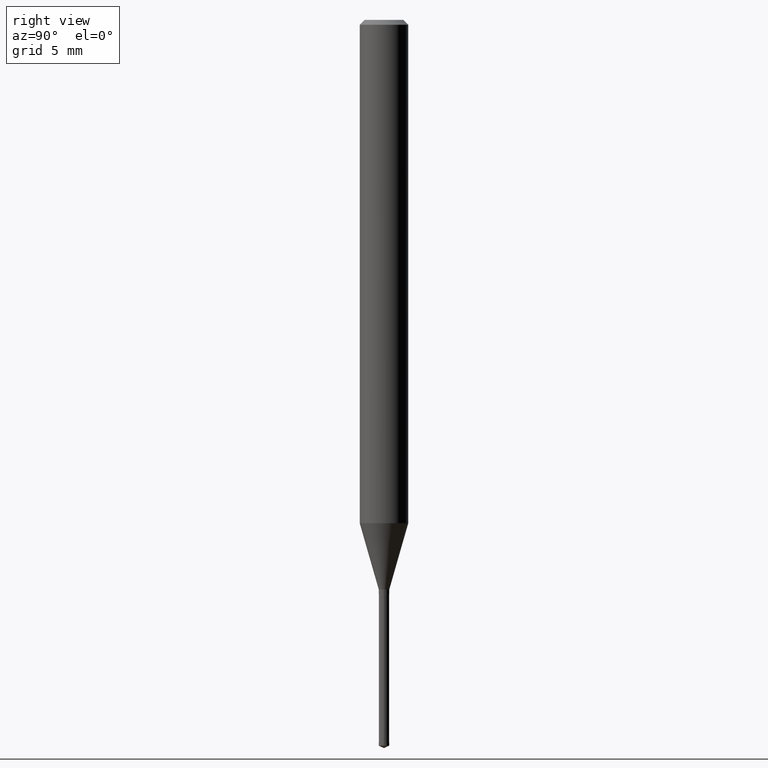
[diagram: clean part render]
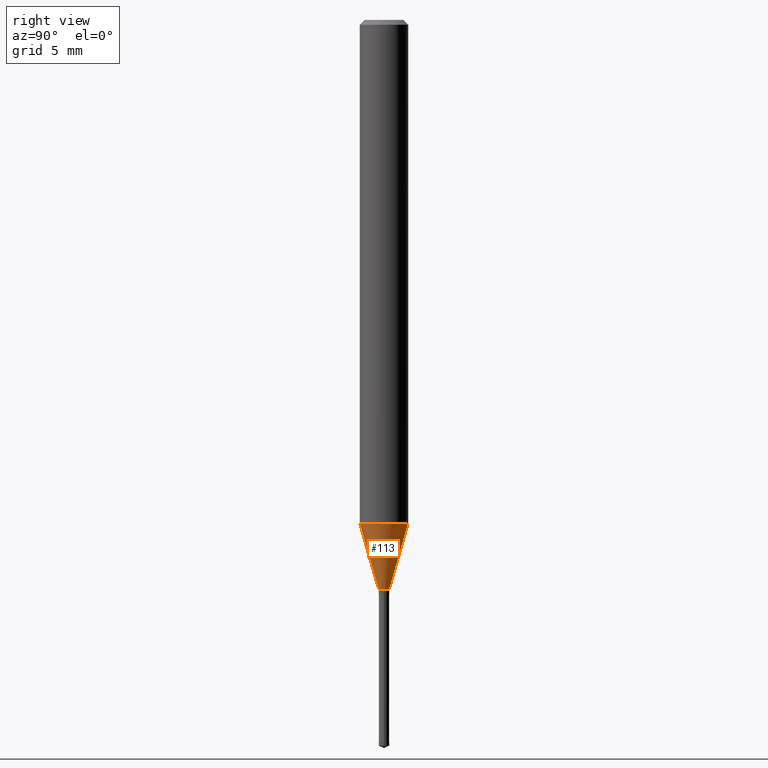
[diagram: same view with one face highlighted and labeled with its STEP entity id]
A machine part, right view. The second image highlights one B-rep face of the part: STEP entity #113.
In plain terms, the highlighted conical surface has half-angle 16.002 deg.
Its self-contained STEP definition (entity closure, byte-faithful):
#101=VERTEX_POINT('',#237);
#109=EDGE_CURVE('',#115,#183,#245,.T.);
#113=ADVANCED_FACE('',(#249),#250,.T.);
#115=VERTEX_POINT('',#252);
#147=EDGE_CURVE('',#201,#183,#286,.T.);
#153=EDGE_CURVE('',#101,#115,#293,.T.);
#161=EDGE_CURVE('',#201,#101,#302,.T.);
#183=VERTEX_POINT('',#329);
#201=VERTEX_POINT('',#351);
#237=CARTESIAN_POINT('',(0.0,0.325,-35.1991339745962));
#245=LINE('',#397,#398);
#249=FACE_OUTER_BOUND('',#402,.T.);
#250=CONICAL_SURFACE('',#403,0.9125,0.279290058693806);
#252=CARTESIAN_POINT('',(3.97997064992272E-017,-0.325,-35.1991339745962));
#286=CIRCLE('',#449,1.5);
#293=CIRCLE('',#457,0.325);
#302=LINE('',#468,#469);
#329=CARTESIAN_POINT('',(1.83690953073357E-016,-1.5,-31.102));
#351=CARTESIAN_POINT('',(0.0,1.5,-31.102));
#397=CARTESIAN_POINT('',(1.11745329786292E-016,-0.9125,-33.1505669872981));
#398=VECTOR('',#555,1.0);
#402=EDGE_LOOP('',(#557,#558,#559,#560));
#403=AXIS2_PLACEMENT_3D('',#561,#562,#563);
#449=AXIS2_PLACEMENT_3D('',#595,#596,#597);
#457=AXIS2_PLACEMENT_3D('',#606,#607,#608);
#468=CARTESIAN_POINT('',(-1.11745329786292E-016,0.9125,-33.1505669872981));
#469=VECTOR('',#619,1.0);
#555=DIRECTION('',(3.3759125764446E-017,-0.275673286024307,0.961251392390441));
#557=ORIENTED_EDGE('',*,*,#161,.F.);
#558=ORIENTED_EDGE('',*,*,#147,.T.);
#559=ORIENTED_EDGE('',*,*,#109,.F.);
#560=ORIENTED_EDGE('',*,*,#153,.F.);
#561=CARTESIAN_POINT('',(0.0,0.0,-33.1505669872981));
#562=DIRECTION('',(-0.0,-0.0,1.0));
#563=DIRECTION('',(0.0,1.0,0.0));
#595=CARTESIAN_POINT('',(0.0,0.0,-31.102));
#596=DIRECTION('',(0.0,0.0,-1.0));
#597=DIRECTION('',(0.0,1.0,0.0));
#606=CARTESIAN_POINT('',(0.0,0.0,-35.1991339745962));
#607=DIRECTION('',(0.0,0.0,-1.0));
#608=DIRECTION('',(0.0,1.0,0.0));
#619=DIRECTION('',(3.3759125764446E-017,-0.275673286024307,-0.961251392390441));